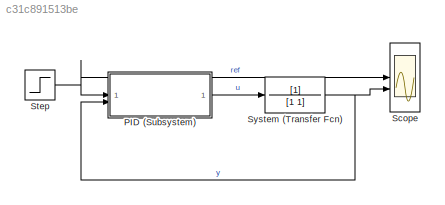
MODEL slx_c31c891513be
KIND model
CONFIG AbsTol = auto
CONFIG EnableMultiTasking = off
CONFIG FixedStep = auto
CONFIG MaxStep = auto
CONFIG MinStep = auto
CONFIG RelTol = 1e-3
CONFIG SampleTimeConstraint = Unconstrained
CONFIG SolverName = VariableStepAuto
CONFIG StartTime = 0.0
CONFIG StopTime = 20
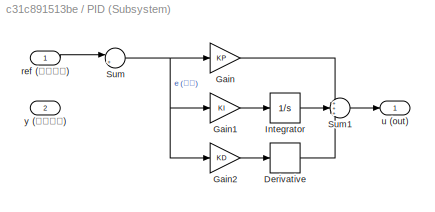
BLOCK [SubSystem] PID (Subsystem)
BLOCK [Derivative] PID (Subsystem)/Derivative
BLOCK [Gain] PID (Subsystem)/Gain
  Gain = KP
BLOCK [Gain] PID (Subsystem)/Gain1
  Gain = KI
BLOCK [Gain] PID (Subsystem)/Gain2
  Gain = KD
BLOCK [Integrator] PID (Subsystem)/Integrator
BLOCK [Sum] PID (Subsystem)/Sum
  Inputs = |+-
BLOCK [Sum] PID (Subsystem)/Sum1
  Inputs = +++
BLOCK [Inport] PID (Subsystem)/ref (參考輸入)
BLOCK [Outport] PID (Subsystem)/u (out)
BLOCK [Inport] PID (Subsystem)/y (反饋環節)
  Port = 2
BLOCK [Scope] Scope
  Floating = off
  NumInputPorts = 2
  ScopeSpecificationString = Simulink.scopes.TimeScopeBlockCfg('CurrentConfiguration', extmgr.ConfigurationSet(extmgr.Configuration('Core','General UI',true),extmgr.Configuration('Core','Source UI',true),extmgr.Configuration('Sources','WiredSimulink',true),extmgr.Configuration('Visuals','Time Domain',true,'SerializedDisplays',{struct('MinYLimReal','0.17547','MaxYLimReal','1.47342','YLabelReal','','MinYLimMag','0.17547','MaxYL...<+1486ch>
BLOCK [Step] Step
  SampleTime = 0
  Time = 0
BLOCK [TransferFcn] System (Transfer Fcn)
  Denominator = [1 1]
LINE PID (Subsystem)/Derivative:1 -> PID (Subsystem)/Sum1:3
LINE PID (Subsystem)/Gain1:1 -> PID (Subsystem)/Integrator:1
LINE PID (Subsystem)/Gain2:1 -> PID (Subsystem)/Derivative:1
LINE PID (Subsystem)/Gain:1 -> PID (Subsystem)/Sum1:1
LINE PID (Subsystem)/Integrator:1 -> PID (Subsystem)/Sum1:2
LINE PID (Subsystem)/Sum1:1 -> PID (Subsystem)/u (out):1
NET PID (Subsystem)/Sum:1 -> PID (Subsystem)/Gain1:1, PID (Subsystem)/Gain2:1, PID (Subsystem)/Gain:1
LINE PID (Subsystem)/ref (參考輸入):1 -> PID (Subsystem)/Sum:1
LINE PID (Subsystem):1 -> System (Transfer Fcn):1
NET Step:1 -> PID (Subsystem):1, Scope:1
NET System (Transfer Fcn):1 -> PID (Subsystem):2, Scope:2
note: NET lines group one-source signal fan-out (src -> all destinations, sorted); 1:1 wires keep LINE
